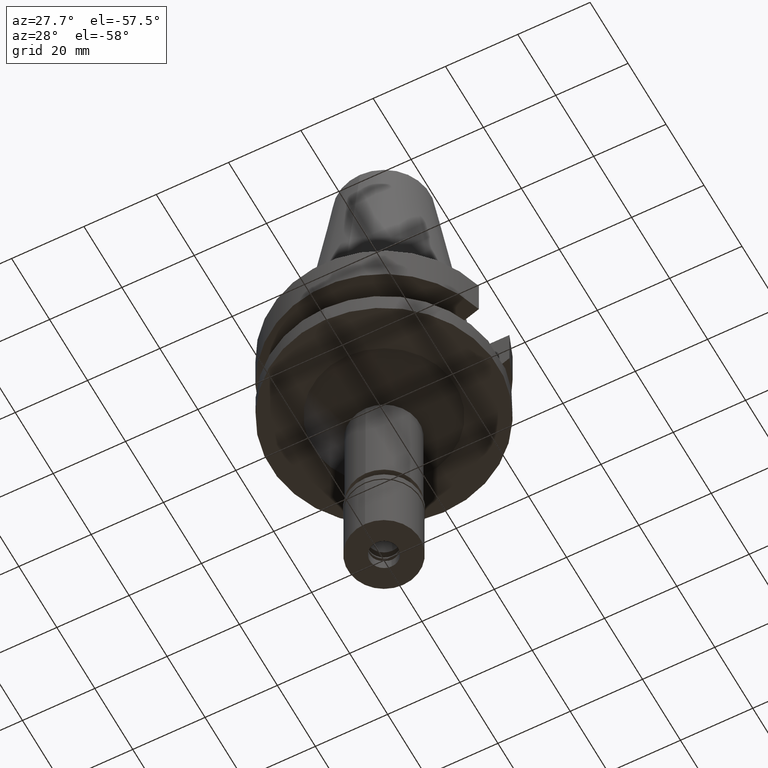
[diagram: clean part render]
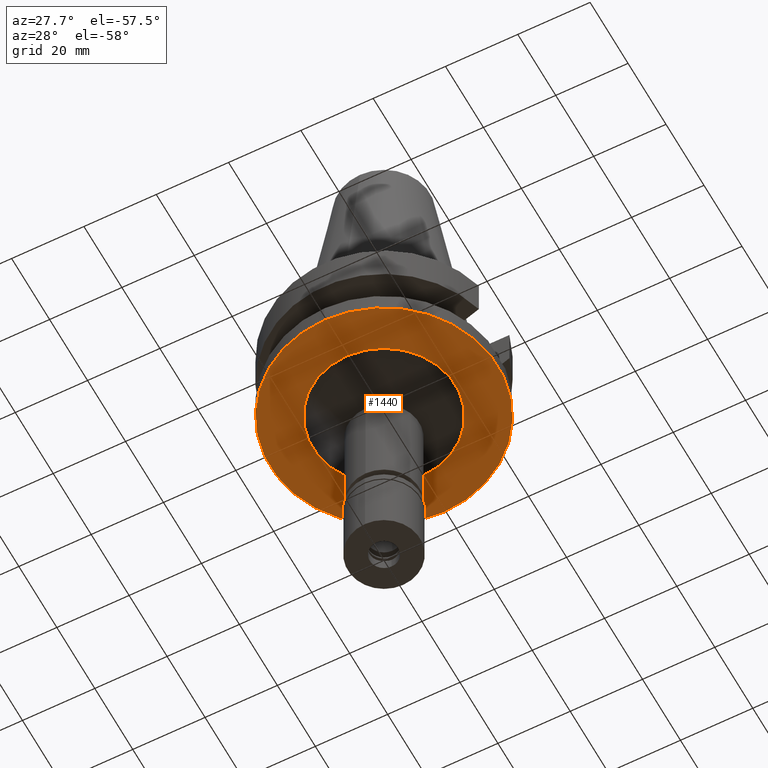
[diagram: same view with one face highlighted and labeled with its STEP entity id]
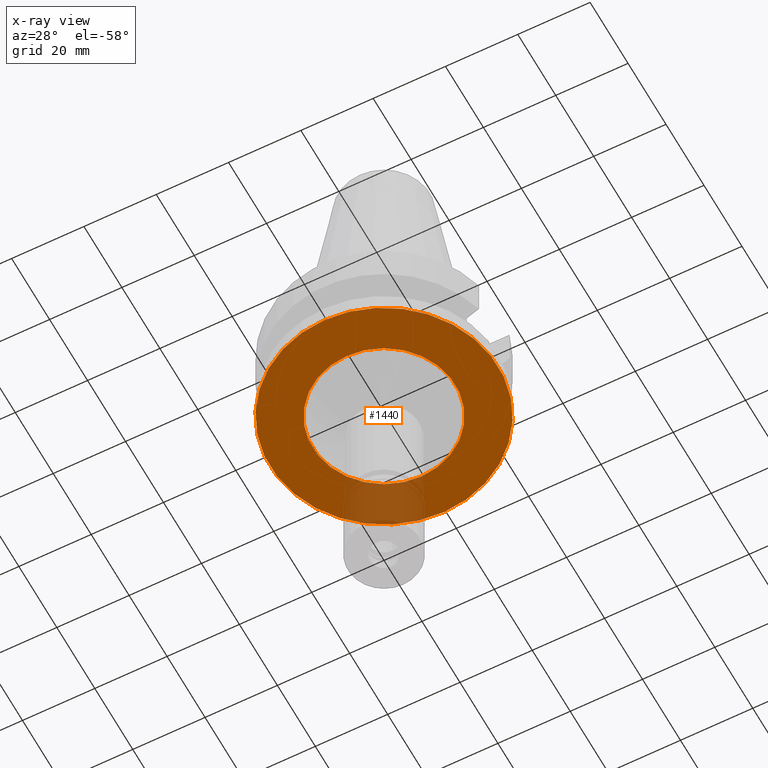
[diagram: x-ray of the same camera — body ghosted, the highlighted face saturated]
A machine part, auxiliary view. The second image highlights one B-rep face of the part: STEP entity #1440.
The next image is the same camera in x-ray: the body ghosted, the highlighted face saturated — about 13% of this face is hidden behind the body in this view.
In plain terms, the highlighted planar face has unit normal (0, 0, -1).
Its self-contained STEP definition (entity closure, byte-faithful):
#70 = AXIS2_PLACEMENT_3D ( 'NONE', #332, #2513, #443 ) ;
#129 = DIRECTION ( 'NONE',  ( 0.0000000000000000000, 0.0000000000000000000, 1.000000000000000000 ) ) ;
#139 = CARTESIAN_POINT ( 'NONE',  ( 0.0000000000000000000, 31.50000000000000000, -27.00000000000000000 ) ) ;
#198 = CARTESIAN_POINT ( 'NONE',  ( 0.0000000000000000000, 0.0000000000000000000, -27.00000000000000000 ) ) ;
#256 = ORIENTED_EDGE ( 'NONE', *, *, #2446, .F. ) ;
#270 = AXIS2_PLACEMENT_3D ( 'NONE', #439, #1915, #1406 ) ;
#332 = CARTESIAN_POINT ( 'NONE',  ( 0.0000000000000000000, 0.0000000000000000000, -27.00000000000000000 ) ) ;
#439 = CARTESIAN_POINT ( 'NONE',  ( 0.0000000000000000000, 0.0000000000000000000, -27.00000000000000000 ) ) ;
#443 = DIRECTION ( 'NONE',  ( 0.0000000000000000000, 1.000000000000000000, 0.0000000000000000000 ) ) ;
#562 = ORIENTED_EDGE ( 'NONE', *, *, #3027, .F. ) ;
#637 = PLANE ( 'NONE',  #3047 ) ;
#739 = VERTEX_POINT ( 'NONE', #1398 ) ;
#941 = EDGE_LOOP ( 'NONE', ( #256, #562 ) ) ;
#1023 = AXIS2_PLACEMENT_3D ( 'NONE', #2429, #1230, #2715 ) ;
#1032 = EDGE_LOOP ( 'NONE', ( #2437, #1420 ) ) ;
#1079 = AXIS2_PLACEMENT_3D ( 'NONE', #2284, #129, #3020 ) ;
#1145 = CARTESIAN_POINT ( 'NONE',  ( 0.0000000000000000000, -19.75000000000000000, -27.00000000000000000 ) ) ;
#1230 = DIRECTION ( 'NONE',  ( 0.0000000000000000000, 0.0000000000000000000, 1.000000000000000000 ) ) ;
#1385 = VERTEX_POINT ( 'NONE', #139 ) ;
#1398 = CARTESIAN_POINT ( 'NONE',  ( 0.0000000000000000000, -31.50000000000000000, -27.00000000000000000 ) ) ;
#1406 = DIRECTION ( 'NONE',  ( 0.0000000000000000000, -1.000000000000000000, 0.0000000000000000000 ) ) ;
#1411 = DIRECTION ( 'NONE',  ( 0.0000000000000000000, -1.000000000000000000, 0.0000000000000000000 ) ) ;
#1420 = ORIENTED_EDGE ( 'NONE', *, *, #2718, .F. ) ;
#1440 = ADVANCED_FACE ( 'NONE', ( #1606, #3114 ), #637, .T. ) ;
#1606 = FACE_OUTER_BOUND ( 'NONE', #941, .T. ) ;
#1665 = VERTEX_POINT ( 'NONE', #1145 ) ;
#1686 = CIRCLE ( 'NONE', #1023, 31.50000000000000000 ) ;
#1915 = DIRECTION ( 'NONE',  ( 0.0000000000000000000, 0.0000000000000000000, -1.000000000000000000 ) ) ;
#2150 = EDGE_CURVE ( 'NONE', #2566, #1665, #2177, .T. ) ;
#2177 = CIRCLE ( 'NONE', #70, 19.75000000000000000 ) ;
#2231 = CIRCLE ( 'NONE', #1079, 31.50000000000000000 ) ;
#2284 = CARTESIAN_POINT ( 'NONE',  ( 0.0000000000000000000, 0.0000000000000000000, -27.00000000000000000 ) ) ;
#2429 = CARTESIAN_POINT ( 'NONE',  ( 0.0000000000000000000, 0.0000000000000000000, -27.00000000000000000 ) ) ;
#2437 = ORIENTED_EDGE ( 'NONE', *, *, #2150, .F. ) ;
#2446 = EDGE_CURVE ( 'NONE', #1385, #739, #1686, .T. ) ;
#2513 = DIRECTION ( 'NONE',  ( 0.0000000000000000000, 0.0000000000000000000, -1.000000000000000000 ) ) ;
#2566 = VERTEX_POINT ( 'NONE', #2784 ) ;
#2602 = DIRECTION ( 'NONE',  ( 0.0000000000000000000, 0.0000000000000000000, -1.000000000000000000 ) ) ;
#2646 = CIRCLE ( 'NONE', #270, 19.75000000000000000 ) ;
#2715 = DIRECTION ( 'NONE',  ( 0.0000000000000000000, 1.000000000000000000, 0.0000000000000000000 ) ) ;
#2718 = EDGE_CURVE ( 'NONE', #1665, #2566, #2646, .T. ) ;
#2784 = CARTESIAN_POINT ( 'NONE',  ( 0.0000000000000000000, 19.75000000000000000, -27.00000000000000000 ) ) ;
#3020 = DIRECTION ( 'NONE',  ( 0.0000000000000000000, -1.000000000000000000, 0.0000000000000000000 ) ) ;
#3027 = EDGE_CURVE ( 'NONE', #739, #1385, #2231, .T. ) ;
#3047 = AXIS2_PLACEMENT_3D ( 'NONE', #198, #2602, #1411 ) ;
#3114 = FACE_BOUND ( 'NONE', #1032, .T. ) ;